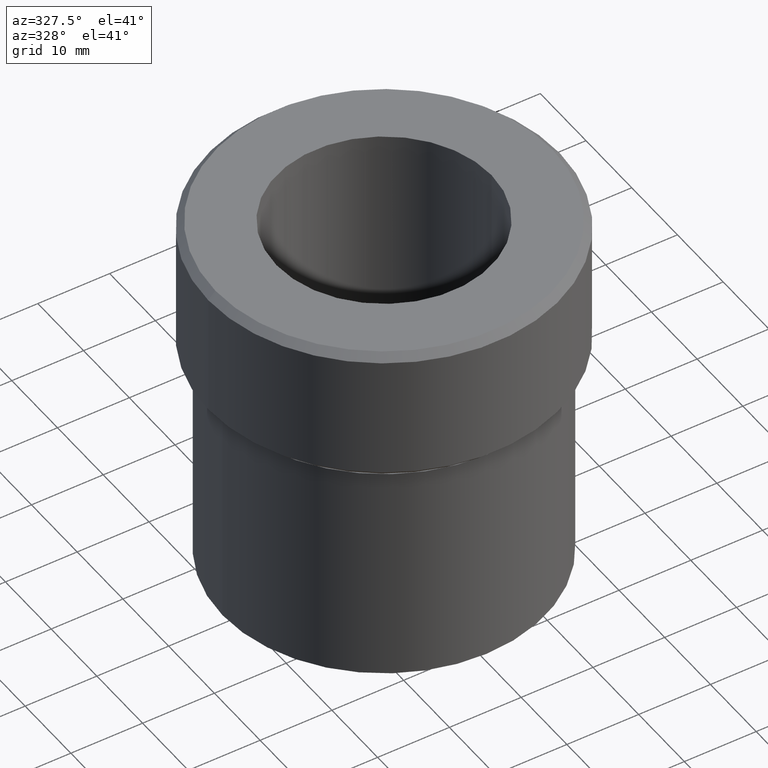
[diagram: clean part render]
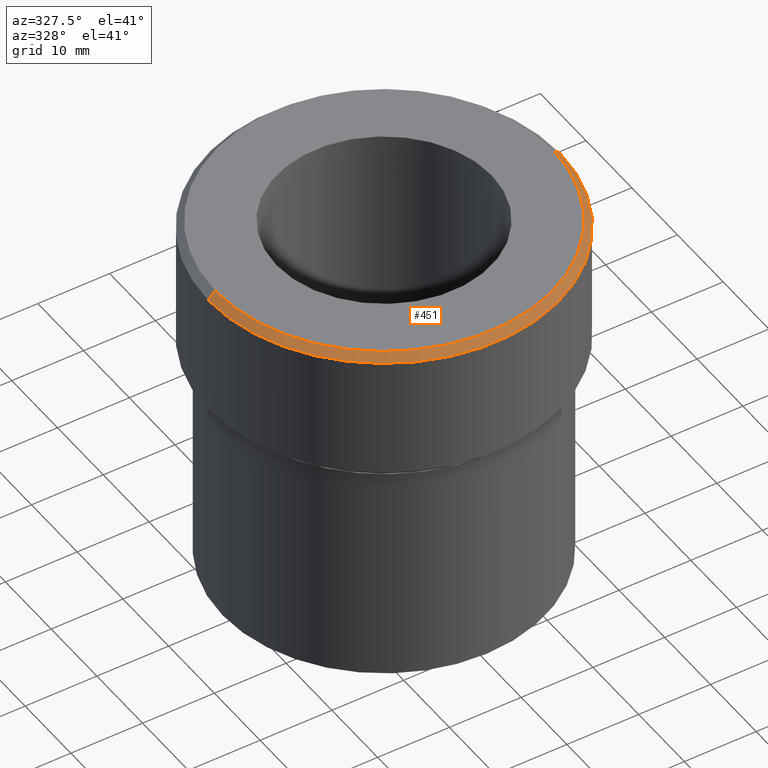
[diagram: same view with one face highlighted and labeled with its STEP entity id]
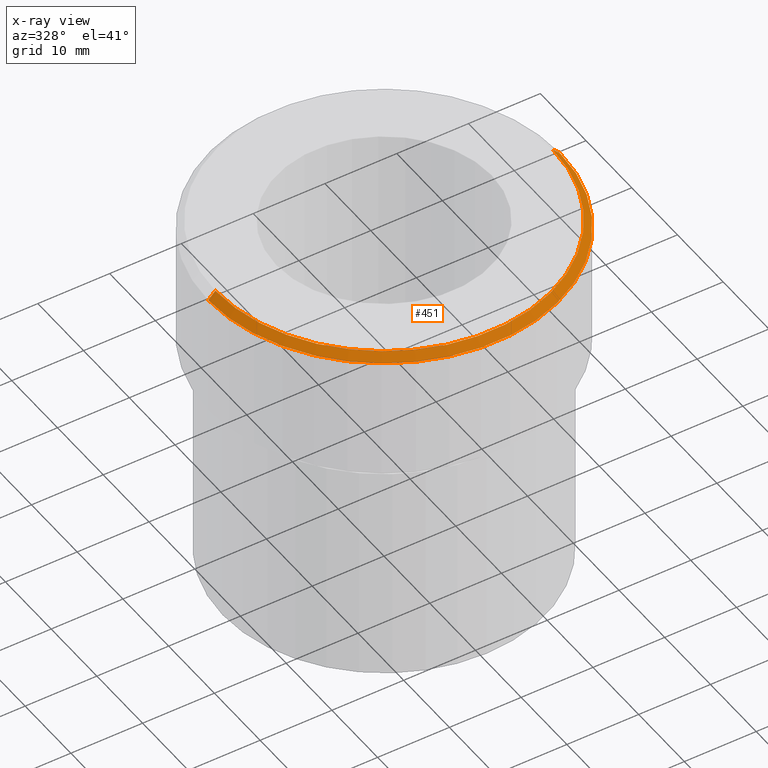
[diagram: x-ray of the same camera — body ghosted, the highlighted face saturated]
A machine part, auxiliary view. The second image highlights one B-rep face of the part: STEP entity #451.
The next image is the same camera in x-ray: the body ghosted, the highlighted face saturated — about 0% of this face is hidden behind the body in this view.
In plain terms, the highlighted conical surface has half-angle 45 deg.
Its self-contained STEP definition (entity closure, byte-faithful):
#8 = ORIENTED_EDGE ( 'NONE', *, *, #223, .T. ) ;
#29 = DIRECTION ( 'NONE',  ( 1.000000000000000000, 0.000000000000000000, 0.000000000000000000 ) ) ;
#43 = LINE ( 'NONE', #117, #388 ) ;
#52 = EDGE_CURVE ( 'NONE', #270, #66, #244, .T. ) ;
#66 = VERTEX_POINT ( 'NONE', #502 ) ;
#71 = CARTESIAN_POINT ( 'NONE',  ( 24.50000000000000000, 0.000000000000000000, -0.9999999999999940048 ) ) ;
#75 = CARTESIAN_POINT ( 'NONE',  ( -24.50000000000000000, 3.000384657911015469E-15, -0.9999999999999940048 ) ) ;
#88 = CARTESIAN_POINT ( 'NONE',  ( 0.000000000000000000, 0.000000000000000000, 0.000000000000000000 ) ) ;
#116 = AXIS2_PLACEMENT_3D ( 'NONE', #446, #359, #283 ) ;
#117 = CARTESIAN_POINT ( 'NONE',  ( -23.50000000000000711, 0.000000000000000000, 0.000000000000000000 ) ) ;
#129 = EDGE_CURVE ( 'NONE', #132, #162, #160, .T. ) ;
#132 = VERTEX_POINT ( 'NONE', #71 ) ;
#134 = LINE ( 'NONE', #297, #235 ) ;
#141 = FACE_OUTER_BOUND ( 'NONE', #313, .T. ) ;
#160 = CIRCLE ( 'NONE', #116, 24.50000000000000000 ) ;
#162 = VERTEX_POINT ( 'NONE', #75 ) ;
#186 = AXIS2_PLACEMENT_3D ( 'NONE', #274, #216, #385 ) ;
#216 = DIRECTION ( 'NONE',  ( 0.000000000000000000, 0.000000000000000000, -1.000000000000000000 ) ) ;
#223 = EDGE_CURVE ( 'NONE', #270, #162, #43, .T. ) ;
#235 = VECTOR ( 'NONE', #262, 1000.000000000000114 ) ;
#244 = CIRCLE ( 'NONE', #427, 23.50000000000000711 ) ;
#262 = DIRECTION ( 'NONE',  ( 0.7071067811865474617, 8.659560562354932858E-17, -0.7071067811865474617 ) ) ;
#263 = CONICAL_SURFACE ( 'NONE', #186, 23.50000000000000711, 0.7853981633974482790 ) ;
#266 = ORIENTED_EDGE ( 'NONE', *, *, #52, .F. ) ;
#270 = VERTEX_POINT ( 'NONE', #456 ) ;
#274 = CARTESIAN_POINT ( 'NONE',  ( 0.000000000000000000, 0.000000000000000000, 0.000000000000000000 ) ) ;
#276 = ORIENTED_EDGE ( 'NONE', *, *, #129, .F. ) ;
#283 = DIRECTION ( 'NONE',  ( 1.000000000000000000, 0.000000000000000000, 0.000000000000000000 ) ) ;
#297 = CARTESIAN_POINT ( 'NONE',  ( 23.50000000000000711, 2.877919977996281109E-15, 0.000000000000000000 ) ) ;
#313 = EDGE_LOOP ( 'NONE', ( #519, #266, #8, #276 ) ) ;
#315 = EDGE_CURVE ( 'NONE', #66, #132, #134, .T. ) ;
#359 = DIRECTION ( 'NONE',  ( 0.000000000000000000, 0.000000000000000000, -1.000000000000000000 ) ) ;
#385 = DIRECTION ( 'NONE',  ( -1.000000000000000000, 0.000000000000000000, 0.000000000000000000 ) ) ;
#388 = VECTOR ( 'NONE', #401, 1000.000000000000114 ) ;
#393 = DIRECTION ( 'NONE',  ( -0.000000000000000000, -0.000000000000000000, 1.000000000000000000 ) ) ;
#401 = DIRECTION ( 'NONE',  ( -0.7071067811865474617, 0.000000000000000000, -0.7071067811865474617 ) ) ;
#427 = AXIS2_PLACEMENT_3D ( 'NONE', #88, #393, #29 ) ;
#446 = CARTESIAN_POINT ( 'NONE',  ( 0.000000000000000000, 0.000000000000000000, -0.9999999999999940048 ) ) ;
#451 = ADVANCED_FACE ( 'NONE', ( #141 ), #263, .T. ) ;
#456 = CARTESIAN_POINT ( 'NONE',  ( -23.50000000000000711, 0.000000000000000000, 0.000000000000000000 ) ) ;
#502 = CARTESIAN_POINT ( 'NONE',  ( 23.50000000000000711, 2.939152317953648289E-15, 0.000000000000000000 ) ) ;
#519 = ORIENTED_EDGE ( 'NONE', *, *, #315, .F. ) ;